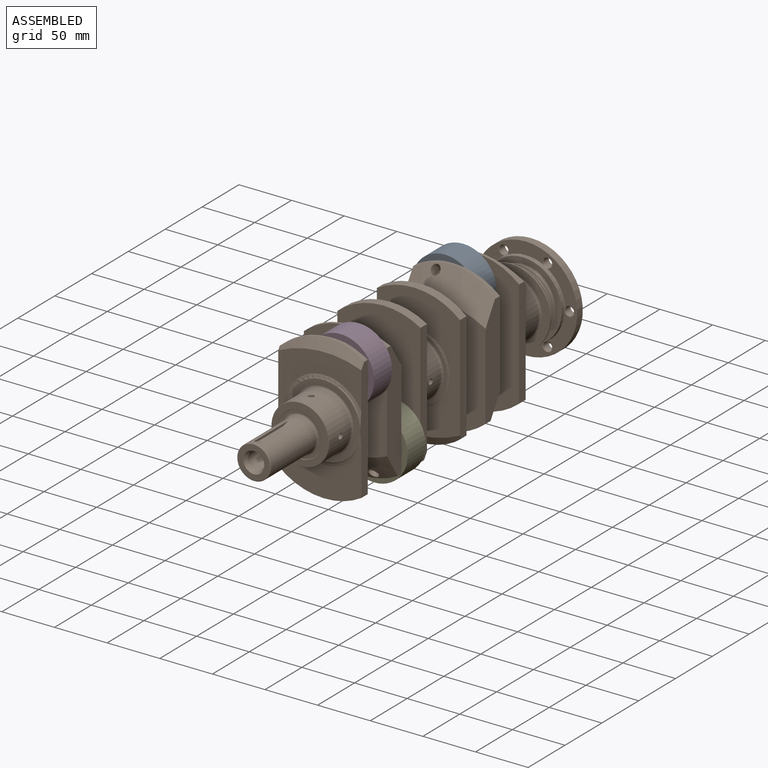
[diagram: assembled view]
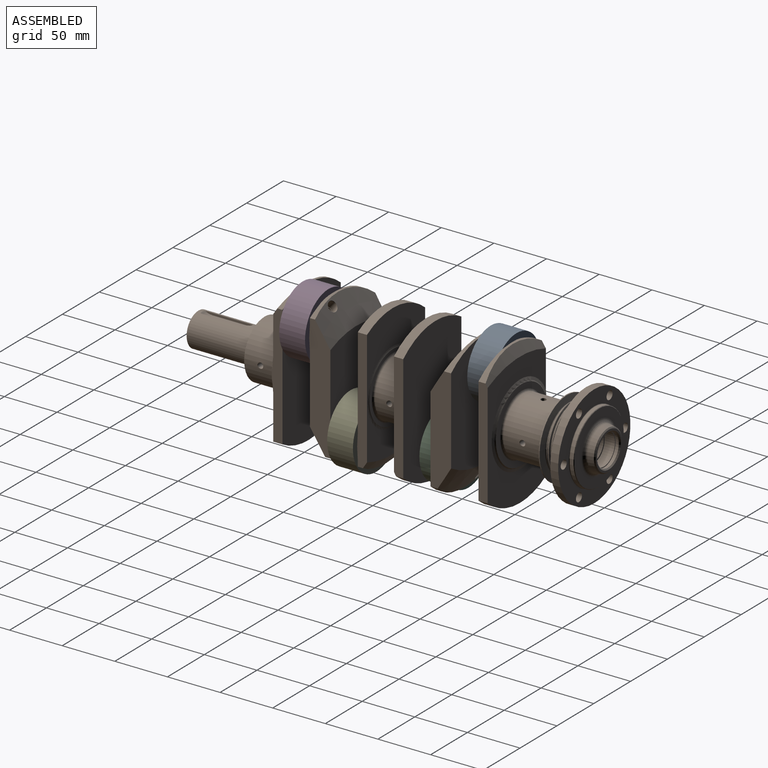
[diagram: assembled view, second angle]
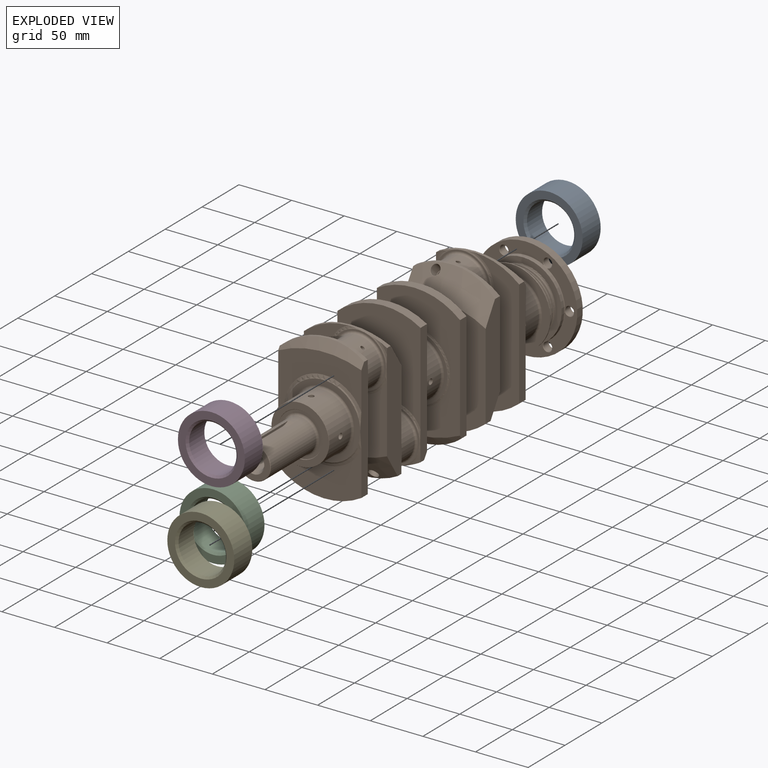
[diagram: exploded view]
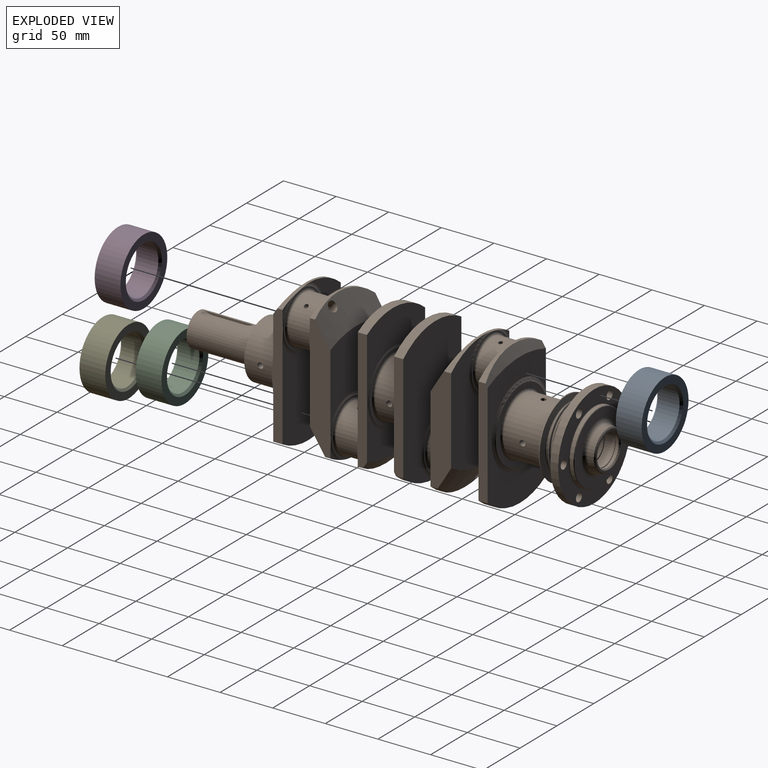
[diagram: exploded view, second angle]
ASSEMBLY  parts=5 mates=4
PART A: 6 faces, bbox 63.6x24.5x63.6 mm
  f0: cylinder r=22.5mm len=45mm, axis (0,1,0), area 2898.1mm2, adj f4,f5
  f1: cylinder r=31.8mm len=63.6mm, axis (0,1,0), area 4895.2mm2, adj f2,f3
  f2: plane 63.6x63.6mm, normal (0,-1,0), area 1291.2mm2, adj f1,f5
  f3: plane 63.6x63.6mm, normal (0,1,0), area 1291.2mm2, adj f1,f4
  f4: cone r=24.5mm half-angle=45deg, axis (0,1,0), area 417.6mm2, adj f0,f3
  f5: cone r=22.5mm half-angle=45deg, axis (0,-1,0), area 417.6mm2, adj f0,f2
PART B: 289 faces, bbox 133.7x410.5x174 mm
  f0: cylinder r=32.5mm len=65mm, axis (0,-1,0), area 258.4mm2, adj f1,f286,f287,f288
  f1: bspline ~75.06x65mm, area 482.8mm2, adj f0,f2,f285,f286,f288
  f2: torus R=31.5mm, axis (0,-1,0), area 777.3mm2, adj f1,f3,f4,f7,f283,f284,f285,f286
  f3: cylinder r=30.75mm len=61.5mm, axis (0,1,0), area 283.4mm2, adj f2,f4,f287,f288
  f4: bspline ~75.06x65mm, area 482.8mm2, adj f2,f3,f5,f283,f288
  f5: cylinder r=32.5mm len=65mm, axis (0,-1,0), area 258.4mm2, adj f4,f6,f283,f284,f288
  f6: cone r=30.65mm half-angle=58.2deg, axis (0,1,0), area 20.9mm2, adj f5,f284,f288
  f7: plane 74x74mm, normal (0,-1,0), area 1183.6mm2, adj f2,f8
  f8: cylinder r=37mm len=74mm, axis (0,-1,0), area 813.7mm2, adj f7,f9
  f9: torus R=37.5mm, axis (0,-1,0), area 177.9mm2, adj f8,f10,f277,f278,f279,f280,f281,f282
  f10: bspline ~3.76x2.42mm, area 2.3mm2, adj f9,f11,f276
  f11: cylinder r=4.1mm len=8.2mm, axis (0,1,0), area 180.7mm2, adj f10,f12,f276
  f12: plane 98x98mm, normal (0,1,0), area 3486.8mm2, adj f11,f13,f14,f266,f268,f270,f272,f274
  f13: cylinder r=49mm len=98mm, axis (0,-1,0), area 2309.1mm2, adj f12,f282
  f14: torus R=34.5mm, axis (0,1,0), area 168.7mm2, adj f12,f15
  f15: cylinder r=34mm len=68mm, axis (0,-1,0), area 747.7mm2, adj f14,f16
  f16: cone r=34mm half-angle=45deg, axis (0,-1,0), area 149.9mm2, adj f15,f17
  f17: plane 67x67mm, normal (0,1,0), area 1711.3mm2, adj f16,f18
  f18: torus R=24.03mm, axis (0,-1,0), area 760.2mm2, adj f17,f19
  f19: cone r=19mm half-angle=10deg, axis (0,-1,0), area 652.6mm2, adj f18,f20
  f20: cone r=19.17mm half-angle=50deg, axis (0,-1,0), area 178.9mm2, adj f19,f21
  f21: plane 36x36mm, normal (0,1,0), area 194.2mm2, adj f20,f22
  f22: cone r=16.19mm half-angle=45deg, axis (0,1,0), area 165.2mm2, adj f21,f23
  f23: cylinder r=15mm len=30mm, axis (0,-1,0), area 217.5mm2, adj f22,f24
  f24: plane 31.5x31.5mm, normal (0,-1,0), area 72.5mm2, adj f23,f25
  f25: cylinder r=15.75mm len=31.5mm, axis (0,-1,0), area 128.6mm2, adj f24,f26
  f26: plane 31.5x31.5mm, normal (0,1,0), area 72.5mm2, adj f25,f27
  f27: cylinder r=15mm len=30mm, axis (0,-1,0), area 848.2mm2, adj f26,f28
  f28: plane 30.5x30.5mm, normal (0,-1,0), area 23.8mm2, adj f27,f29
  f29: cylinder r=15.25mm len=30.5mm, axis (0,-1,0), area 95.8mm2, adj f28,f30
  f30: plane 30.5x30.5mm, normal (0,1,0), area 114.9mm2, adj f29,f31
  f31: cylinder r=14mm len=28mm, axis (0,-1,0), area 545.4mm2, adj f30,f32
  f32: plane 28x28mm, normal (0,1,0), area 361.3mm2, adj f31,f33
  f33: cone r=9mm half-angle=60deg, axis (0,1,0), area 116.1mm2, adj f32,f34
  f34: cylinder r=7mm len=14mm, axis (0,-1,0), area 301.1mm2, adj f33,f35
  f35: torus R=6mm, axis (0,-1,0), area 65.5mm2, adj f34,f36
  f36: plane 12x12mm, normal (0,1,0), area 34.6mm2, adj f35,f37
  f37: cylinder r=5mm len=48mm, axis (0,-1,0), area 1303.9mm2, adj f36,f38,f257,f258,f259,f262,f263,f264
  f38: cylinder r=2.5mm len=22.84mm, axis (0,0,1), area 358.7mm2, adj f37,f39
  f39: bspline ~5.43x5.4mm, area 4.7mm2, adj f38,f40
  f40: cylinder r=27.5mm len=55mm, axis (0,-1,0), area 6473.6mm2, adj f39,f41,f42,f43,f50,f51
  f41: bspline ~5.43x5.4mm, area 4.7mm2, adj f40,f258
  f42: bspline ~5.43x5.4mm, area 4.7mm2, adj f40,f257
  f43: torus R=29.5mm, axis (0,-1,0), area 557.2mm2, adj f40,f44
  f44: plane 74x74mm, normal (0,-1,0), area 1566.9mm2, adj f43,f45
  f45: cylinder r=37mm len=74mm, axis (0,-1,0), area 232.5mm2, adj f44,f46
  f46: cone r=37mm half-angle=81.9deg, axis (0,-1,0), area 1364.4mm2, adj f45,f47
  f47: torus R=30.75mm, axis (0,-1,0), area 203.6mm2, adj f46,f48
  f48: cylinder r=30mm len=60mm, axis (0,-1,0), area 18.8mm2, adj f47,f49
  f49: torus R=30.75mm, axis (0,-1,0), area 205mm2, adj f48,f288
  f50: bspline ~5.44x5.4mm, area 4.7mm2, adj f40,f265
  f51: torus R=29.5mm, axis (0,1,0), area 557.2mm2, adj f40,f52
  f52: plane 70x70mm, normal (0,1,0), area 1114.5mm2, adj f51,f53
  f53: torus R=38.57mm, axis (0,1,0), area 852.4mm2, adj f52,f54,f256
  f54: plane 125.72x79mm, normal (0,1,0), area 4779mm2, adj f53,f55,f254,f255,f256
  f55: cylinder r=67.5mm len=79mm, axis (0,-1,0), area 741.3mm2, adj f54,f56,f254,f256
  f56: plane 154.99x99mm, normal (0,-1,0), area 7489.8mm2, adj f55,f57,f253,f254,f256
  f57: torus R=28.63mm, axis (0,1,0), area 3059.6mm2, adj f56,f58,f252,f253,f256
  f58: plane 52x52mm, normal (0,-1,0), area 238mm2, adj f57,f59
  f59: torus R=24.5mm, axis (0,1,0), area 458.5mm2, adj f58,f60
  f60: cylinder r=22.5mm len=45mm, axis (0,-1,0), area 2852.4mm2, adj f59,f61,f68,f70,f71
  f61: bspline ~4.91x4.17mm, area 6.2mm2, adj f60,f62
  f62: cylinder r=1.75mm len=20mm, axis (0.68,0,0.73), area 243.6mm2, adj f61,f63,f65,f66,f67
  f63: cone r=1.75mm half-angle=60deg, axis (0.68,0,0.73), area 1.8mm2, adj f62,f64,f65
  f64: cone r=0mm half-angle=59deg, axis (0.21,0,-0.98), area 0mm2, adj f63,f65
  f65: cylinder r=1.75mm len=28.83mm, axis (0.21,0,-0.98), area 301.6mm2, adj f62,f63,f64,f70
  f66: cylinder r=1.75mm len=0.11mm, axis (0.21,0,-0.98), area 0mm2, adj f62
  f67: cylinder r=1.75mm len=0.11mm, axis (0.21,0,-0.98), area 0mm2, adj f62
  f68: bspline ~4.15x4.12mm, area 5.7mm2, adj f60,f69
  f69: cylinder r=1.75mm len=18.13mm, axis (0.21,0,-0.98), area 177.8mm2, adj f68,f259
  f70: bspline ~4.54x4.17mm, area 6mm2, adj f60,f65
  f71: torus R=24.5mm, axis (0,1,0), area 458.5mm2, adj f60,f72
  f72: plane 52x52mm, normal (0,1,0), area 238mm2, adj f71,f73
  f73: torus R=28.63mm, axis (0,1,0), area 1623.7mm2, adj f72,f74,f249,f250,f251
  f74: plane 135.44x40.63mm, normal (-1,0,0), area 1938.3mm2, adj f73,f75,f80,f81,f82,f83,f84,f249
  f75: cone r=109mm half-angle=55deg, axis (0,1,0), area 2228.9mm2, adj f74,f76,f77,f80,f250
  f76: plane 103.41x20.53mm, normal (1,0,0), area 1734.4mm2, adj f75,f80,f83,f84,f250,f251
  f77: bspline ~9.55x8mm, area 8.4mm2, adj f75,f78
  f78: cylinder r=4.57mm len=13.41mm, axis (-0.15,-0.67,0.72), area 259.6mm2, adj f77,f79
  f79: plane 9.02x6.74mm, normal (-0.15,-0.67,0.72), area 13.6mm2, adj f78,f259
  f80: plane 110.36x79mm, normal (0,-1,0), area 5617.6mm2, adj f74,f75,f76,f81,f83
  f81: torus R=28.63mm, axis (0,1,0), area -278.2mm2, adj f74,f80,f82,f83
  f82: plane 29.31x26.4mm, normal (0,-1,0), area 15.1mm2, adj f74,f81,f83
  f83: cylinder r=67.5mm len=79mm, axis (0,-1,0), area 306.7mm2, adj f74,f76,f80,f81,f82,f84
  f84: cone r=109mm half-angle=55deg, axis (0,-1,0), area 2229.1mm2, adj f74,f76,f83,f85,f251
  f85: bspline ~9.55x8.01mm, area 8.4mm2, adj f84,f86
  f86: cylinder r=4.57mm len=13.43mm, axis (-0.15,0.67,-0.72), area 252.1mm2, adj f85,f87
  f87: plane 9.02x6.74mm, normal (-0.15,0.67,-0.72), area 13.6mm2, adj f86,f88
  f88: cylinder r=4.07mm len=59.29mm, axis (-0.15,0.67,-0.72), area 1812.7mm2, adj f87,f89,f155,f156,f157,f158,f159,f160
  f89: cylinder r=1.75mm len=18.13mm, axis (0.21,0,0.98), area 177.8mm2, adj f88,f90
  f90: bspline ~4.15x4.12mm, area 5.7mm2, adj f89,f91
  f91: cylinder r=22.5mm len=45mm, axis (0,-1,0), area 2852.5mm2, adj f90,f92,f100,f101,f104
  f92: bspline ~4.17x3.7mm, area 6mm2, adj f91,f93
  f93: cylinder r=1.75mm len=30.08mm, axis (0.21,0,0.98), area 308.8mm2, adj f92,f94,f95,f96,f97,f98,f99
  f94: cylinder r=1.75mm len=22.76mm, axis (-0.92,0,-0.39), area 233mm2, adj f93,f95,f100
  f95: cone r=0mm half-angle=59deg, axis (0.21,0,0.98), area 6.3mm2, adj f93,f94
  f96: cone r=1.75mm half-angle=60deg, axis (-0.92,0,-0.39), area 0mm2, adj f93,f97
  f97: cylinder r=1.75mm len=2.22mm, axis (-0.92,0,-0.39), area 1mm2, adj f93,f96
  f98: cone r=1.75mm half-angle=60deg, axis (-0.92,0,-0.39), area 0mm2, adj f93,f99
  f99: cylinder r=1.75mm len=2.22mm, axis (-0.92,0,-0.39), area 1mm2, adj f93,f98
  f100: bspline ~4.17x4.14mm, area 6.2mm2, adj f91,f94
  f101: torus R=24.5mm, axis (0,1,0), area 458.5mm2, adj f91,f102
  f102: plane 52x52mm, normal (0,-1,0), area 238mm2, adj f101,f103
  f103: torus R=28.63mm, axis (0,1,0), area 0mm2, adj f102
  f104: torus R=24.5mm, axis (0,1,0), area 458.5mm2, adj f91,f105
  f105: plane 52x52mm, normal (0,1,0), area 238mm2, adj f104,f106
  f106: torus R=28.63mm, axis (0,1,0), area 733.5mm2, adj f105,f107,f152,f153,f154
  f107: plane 135.43x29.31mm, normal (-1,0,0), area 1005.4mm2, adj f106,f108,f110,f151,f152,f153,f154
  f108: cylinder r=67.5mm len=79mm, axis (0,-1,0), area 741.3mm2, adj f107,f109,f110,f152
  f109: plane 102.4x8.77mm, normal (1,0,0), area 892.6mm2, adj f108,f110,f151,f152,f153
  f110: plane 125.72x79mm, normal (0,-1,0), area 5596.5mm2, adj f107,f108,f109,f111,f151
  f111: torus R=34.68mm, axis (0,1,0), area 475.7mm2, adj f110,f112
  f112: plane 65x65mm, normal (0,-1,0), area 584.3mm2, adj f111,f113
  f113: torus R=29.5mm, axis (0,1,0), area 557.2mm2, adj f112,f114
  f114: cylinder r=27.5mm len=55mm, axis (0,1,0), area 4576.8mm2, adj f113,f115,f116,f121,f122,f150
  f115: bspline ~5.43x5.4mm, area 4.7mm2, adj f114,f155
  f116: bspline ~5.44x5.4mm, area 4.7mm2, adj f114,f117
  f117: cylinder r=2.5mm len=22.66mm, axis (0,0,1), area 332.4mm2, adj f116,f118,f119,f120,f156
  f118: cone r=4.07mm half-angle=60deg, axis (-0.15,0.67,-0.72), area 60mm2, adj f117,f119
  f119: cylinder r=4.07mm len=8.86mm, axis (-0.15,0.67,-0.72), area 58.2mm2, adj f117,f118,f155,f156,f157,f161
  f120: cone r=4.07mm half-angle=60deg, axis (0.15,-0.67,-0.72), area 60mm2, adj f117,f156
  f121: bspline ~5.43x5.4mm, area 4.7mm2, adj f114,f157
  f122: torus R=29.5mm, axis (0,-1,0), area 557.2mm2, adj f114,f123
  f123: plane 65x65mm, normal (0,1,0), area 584.3mm2, adj f122,f124
  f124: torus R=34.68mm, axis (0,-1,0), area 475.7mm2, adj f123,f125
  f125: plane 125.72x79mm, normal (0,1,0), area 5596.5mm2, adj f124,f126,f147,f148,f149
  f126: plane 135.43x29.31mm, normal (1,0,0), area 1005.4mm2, adj f125,f127,f128,f145,f146,f147,f149
  f127: plane 29.31x26.4mm, normal (0,-1,0), area 15.1mm2, adj f126,f128,f146
  f128: torus R=28.63mm, axis (0,-1,0), area 733.5mm2, adj f126,f127,f129,f145,f146
  f129: plane 52x52mm, normal (0,-1,0), area 238mm2, adj f128,f130
  f130: torus R=24.5mm, axis (0,-1,0), area 458.5mm2, adj f129,f131
  f131: cylinder r=22.5mm len=45mm, axis (0,1,0), area 2852.9mm2, adj f130,f132,f139,f141,f142
  f132: bspline ~4.54x4.17mm, area 6mm2, adj f131,f133
  f133: cylinder r=1.75mm len=28.83mm, axis (-0.21,0,0.98), area 301.6mm2, adj f132,f134,f137,f138
  f134: cylinder r=1.75mm len=20mm, axis (-0.68,0,-0.73), area 243.6mm2, adj f133,f135,f136,f137,f141
  f135: cylinder r=1.75mm len=0.11mm, axis (-0.21,0,0.98), area 0mm2, adj f134
  f136: cylinder r=1.75mm len=0.11mm, axis (-0.21,0,0.98), area 0mm2, adj f134
  f137: cone r=1.75mm half-angle=60deg, axis (-0.68,0,-0.73), area 1.8mm2, adj f133,f134,f138
  f138: cone r=0mm half-angle=59deg, axis (-0.21,0,0.98), area 0mm2, adj f133,f137
  f139: bspline ~4.15x4.12mm, area 5.7mm2, adj f131,f140
  f140: cylinder r=1.75mm len=18.13mm, axis (-0.21,0,0.98), area 177.8mm2, adj f139,f161
  f141: bspline ~4.91x4.17mm, area 6.2mm2, adj f131,f134
  f142: torus R=24.5mm, axis (0,-1,0), area 458.5mm2, adj f131,f143
  f143: plane 52x52mm, normal (0,1,0), area 238mm2, adj f142,f144
  f144: torus R=28.63mm, axis (0,-1,0), area 0mm2, adj f143
  f145: plane 134.99x79mm, normal (0,-1,0), area 7489.8mm2, adj f126,f128,f146,f147,f148
  f146: cylinder r=67.5mm len=79mm, axis (0,1,0), area 306.7mm2, adj f126,f127,f128,f145,f148,f149
  f147: cylinder r=67.5mm len=79mm, axis (0,1,0), area 741.3mm2, adj f125,f126,f145,f148
  f148: plane 102.4x8.77mm, normal (-1,0,0), area 892.6mm2, adj f125,f145,f146,f147,f149
  f149: cone r=109mm half-angle=55deg, axis (0,-1,0), area 752.5mm2, adj f125,f126,f146,f148
  f150: bspline ~5.43x5.4mm, area 4.7mm2, adj f114,f160
  f151: cone r=109mm half-angle=55deg, axis (0,1,0), area 752.5mm2, adj f107,f109,f110,f153
  f152: plane 134.99x79mm, normal (0,1,0), area 7489.8mm2, adj f106,f107,f108,f109,f153
  f153: cylinder r=67.5mm len=79mm, axis (0,-1,0), area 306.7mm2, adj f106,f107,f109,f151,f152,f154
  f154: plane 29.31x26.4mm, normal (0,1,0), area 15.1mm2, adj f106,f107,f153
  f155: cylinder r=2.5mm len=23.76mm, axis (1,0,0), area 364.6mm2, adj f88,f115,f119,f156,f161
  f156: cylinder r=4.07mm len=8.86mm, axis (0.15,-0.67,-0.72), area 58.2mm2, adj f88,f117,f119,f120,f155,f157
  f157: cylinder r=2.5mm len=23.76mm, axis (1,0,0), area 364.6mm2, adj f88,f119,f121,f156,f161
  f158: cone r=0mm half-angle=59deg, axis (0.21,0,0.98), area 8.8mm2, adj f88,f159
  f159: cylinder r=1.75mm len=3.9mm, axis (0.21,0,0.98), area 10.2mm2, adj f88,f158
  f160: cylinder r=2.5mm len=22.53mm, axis (0,0,1), area 318.7mm2, adj f88,f150,f161
  f161: cylinder r=4.07mm len=59.29mm, axis (0.15,-0.67,-0.72), area 1813.7mm2, adj f88,f119,f140,f155,f157,f160,f162,f247
  f162: plane 9.02x6.74mm, normal (0.15,-0.67,-0.72), area 13.6mm2, adj f161,f163
  f163: cylinder r=4.57mm len=13.41mm, axis (0.15,-0.67,-0.72), area 257.2mm2, adj f162,f164
  f164: bspline ~9.54x8mm, area 8.4mm2, adj f163,f165
  f165: cone r=109mm half-angle=55deg, axis (0,1,0), area 2228.7mm2, adj f164,f166,f244,f245,f246
  f166: cylinder r=67.5mm len=79mm, axis (0,1,0), area 306.7mm2, adj f165,f167,f168,f169,f244,f246
  f167: plane 29.31x26.4mm, normal (0,1,0), area 15.1mm2, adj f166,f168,f246
  f168: torus R=28.63mm, axis (0,-1,0), area -278.2mm2, adj f166,f167,f169,f246
  f169: plane 110.36x79mm, normal (0,1,0), area 5617.6mm2, adj f166,f168,f170,f244,f246
  f170: cone r=109mm half-angle=55deg, axis (0,-1,0), area 2228.7mm2, adj f169,f171,f243,f244,f246
  f171: cylinder r=67.5mm len=79mm, axis (0,1,0), area 306.7mm2, adj f170,f172,f173,f244,f245,f246
  f172: plane 9.31x6.4mm, normal (0,-1,0), area 15.1mm2, adj f171,f173,f246
  f173: torus R=28.63mm, axis (0,-1,0), area 1623.7mm2, adj f171,f172,f174,f245,f246
  f174: plane 52x52mm, normal (0,-1,0), area 238mm2, adj f173,f175
  f175: torus R=24.5mm, axis (0,-1,0), area 458.5mm2, adj f174,f176
  f176: cylinder r=22.5mm len=45mm, axis (0,1,0), area 2853.3mm2, adj f175,f177,f185,f241,f242
  f177: bspline ~4.17x4.14mm, area 6.2mm2, adj f176,f178
  f178: cylinder r=1.75mm len=22.76mm, axis (0.92,0,0.39), area 233mm2, adj f177,f179,f180
  f179: cone r=0mm half-angle=59deg, axis (-0.21,0,-0.98), area 6.3mm2, adj f178,f180
  f180: cylinder r=1.75mm len=30.08mm, axis (-0.21,0,-0.98), area 308.8mm2, adj f178,f179,f181,f182,f183,f184,f241
  f181: cone r=1.75mm half-angle=60deg, axis (0.92,0,0.39), area 0mm2, adj f180,f182
  f182: cylinder r=1.75mm len=2.22mm, axis (0.92,0,0.39), area 1mm2, adj f180,f181
  f183: cone r=1.75mm half-angle=60deg, axis (0.92,0,0.39), area 0mm2, adj f180,f184
  f184: cylinder r=1.75mm len=2.22mm, axis (0.92,0,0.39), area 1mm2, adj f180,f183
  f185: bspline ~4.15x4.12mm, area 5.7mm2, adj f176,f186
  f186: cylinder r=1.75mm len=18.13mm, axis (-0.21,0,-0.98), area 177.8mm2, adj f185,f187
  f187: cylinder r=4.07mm len=58.03mm, axis (0.15,0.67,0.72), area 1758.6mm2, adj f186,f188,f190,f191,f192,f239,f240
  f188: plane 9.02x6.74mm, normal (0.15,0.67,0.72), area 13.6mm2, adj f187,f189
  f189: cylinder r=4.57mm len=13.41mm, axis (0.15,0.67,0.72), area 253.5mm2, adj f188,f243
  f190: cone r=0mm half-angle=59deg, axis (-0.21,0,-0.98), area 8.8mm2, adj f187,f191
  f191: cylinder r=1.75mm len=3.9mm, axis (-0.21,0,-0.98), area 10.2mm2, adj f187,f190
  f192: cylinder r=2.5mm len=22.84mm, axis (0,0,1), area 351.6mm2, adj f187,f193,f240
  f193: bspline ~5.43x5.4mm, area 4.7mm2, adj f192,f194
  f194: cylinder r=27.5mm len=55mm, axis (0,-1,0), area 4970.4mm2, adj f193,f195,f197,f202,f225,f226
  f195: bspline ~5.43x5.4mm, area 4.7mm2, adj f194,f196
  f196: cylinder r=2.5mm len=22.84mm, axis (1,0,0), area 358.7mm2, adj f195,f240
  f197: bspline ~5.43x5.4mm, area 4.7mm2, adj f194,f198
  f198: cylinder r=2.5mm len=22.84mm, axis (1,0,0), area 353.1mm2, adj f197,f199,f240
  f199: cylinder r=4.07mm len=8.44mm, axis (0.15,0.67,0.72), area 24mm2, adj f198,f200,f201,f240
  f200: cylinder r=2.5mm len=21.37mm, axis (0,0,1), area 330.5mm2, adj f199,f201,f225
  f201: cone r=4.07mm half-angle=60deg, axis (0.15,0.67,0.72), area 21.6mm2, adj f199,f200,f240
  f202: cone r=27.3mm half-angle=45deg, axis (0,1,0), area 48.7mm2, adj f194,f203
  f203: plane 54.6x54.6mm, normal (0,-1,0), area 956mm2, adj f202,f204
  f204: torus R=20.5mm, axis (0,-1,0), area 102.7mm2, adj f203,f205
  f205: plane 41x41mm, normal (0,-1,0), area 302.4mm2, adj f204,f206
  f206: torus R=18mm, axis (0,-1,0), area 330.2mm2, adj f205,f207
  f207: cylinder r=16mm len=61mm, axis (0,-1,0), area 5853.4mm2, adj f206,f208,f212,f213,f214,f215,f216,f217
  f208: torus R=13.7mm, axis (1,0,0), area 3.6mm2, adj f207,f209,f212,f218
  f209: cylinder r=0.3mm len=31mm, axis (0,-1,0), area 14.6mm2, adj f208,f210,f212,f213
  f210: plane 31x5.4mm, normal (0,0,1), area 167.4mm2, adj f209,f211,f214,f218
  f211: cylinder r=0.3mm len=31mm, axis (0,1,0), area 14.6mm2, adj f210,f215,f216,f217
  f212: plane 44.98x1.92mm, normal (1,0,0), area 77.5mm2, adj f207,f208,f209,f213
  f213: torus R=13.7mm, axis (1,0,0), area 3.6mm2, adj f207,f209,f212,f214
  f214: cylinder r=14mm len=7.64mm, axis (-1,0,0), area 43.7mm2, adj f207,f210,f213,f215
  f215: torus R=13.7mm, axis (1,0,0), area 3.6mm2, adj f207,f211,f214,f216
  f216: plane 44.98x1.92mm, normal (-1,0,0), area 77.5mm2, adj f207,f211,f215,f217
  f217: torus R=13.7mm, axis (1,0,0), area 3.6mm2, adj f207,f211,f216,f218
  f218: cylinder r=14mm len=7.64mm, axis (-1,0,0), area 43.7mm2, adj f207,f208,f210,f217
  f219: cone r=15.5mm half-angle=45deg, axis (0,1,0), area 70mm2, adj f207,f220
  f220: plane 31x31mm, normal (0,-1,0), area 439.3mm2, adj f219,f221
  f221: cone r=8mm half-angle=30deg, axis (0,-1,0), area 228.8mm2, adj f220,f222
  f222: cylinder r=8mm len=18mm, axis (0,-1,0), area 904.8mm2, adj f221,f223
  f223: cone r=5.98mm half-angle=30deg, axis (0,-1,0), area 177.5mm2, adj f222,f224
  f224: plane 11.96x11.96mm, normal (0,-1,0), area 33.8mm2, adj f223,f240
  f225: bspline ~5.44x5.4mm, area 4.7mm2, adj f194,f200
  f226: torus R=29.5mm, axis (0,-1,0), area 557.2mm2, adj f194,f227
  f227: plane 70x70mm, normal (0,-1,0), area 1114.5mm2, adj f226,f228
  f228: torus R=38.57mm, axis (0,-1,0), area 852.4mm2, adj f227,f229,f238
  f229: plane 125.72x79mm, normal (0,-1,0), area 4779mm2, adj f228,f230,f236,f237,f238
  f230: cylinder r=67.5mm len=79mm, axis (0,1,0), area 741.3mm2, adj f229,f231,f236,f238
  f231: plane 154.99x99mm, normal (0,1,0), area 7489.8mm2, adj f230,f232,f235,f236,f238
  f232: torus R=28.63mm, axis (0,-1,0), area 3059.6mm2, adj f231,f233,f234,f235,f238
  f233: plane 52x52mm, normal (0,1,0), area 238mm2, adj f232,f242
  f234: plane 9.31x6.4mm, normal (0,1,0), area 15.1mm2, adj f232,f235,f238
  f235: cylinder r=67.5mm len=79mm, axis (0,1,0), area 306.7mm2, adj f231,f232,f234,f236,f237,f238
  f236: plane 102.4x8.77mm, normal (-1,0,0), area 892.6mm2, adj f229,f230,f231,f235,f237
  f237: cone r=109mm half-angle=55deg, axis (0,1,0), area 752.5mm2, adj f229,f235,f236,f238
  f238: plane 135.42x30.8mm, normal (1,0,0), area 1029.9mm2, adj f228,f229,f230,f231,f232,f234,f235,f237
  f239: cone r=5mm half-angle=60deg, axis (0,-1,0), area 90.7mm2, adj f187,f240
  f240: cylinder r=5mm len=65mm, axis (0,-1,0), area 1857.4mm2, adj f187,f192,f196,f198,f199,f201,f224,f239
  f241: bspline ~4.17x3.7mm, area 6mm2, adj f176,f180
  f242: torus R=24.5mm, axis (0,-1,0), area 458.5mm2, adj f176,f233
  f243: bspline ~9.54x8mm, area 8.4mm2, adj f170,f189
  f244: plane 103.41x20.53mm, normal (-1,0,0), area 1734.4mm2, adj f165,f166,f169,f170,f171,f245
  f245: plane 130.36x99mm, normal (0,-1,0), area 5617.6mm2, adj f165,f171,f173,f244,f246
  f246: plane 135.44x40.63mm, normal (1,0,0), area 1938.3mm2, adj f165,f166,f167,f168,f169,f170,f171,f172
  f247: cone r=0mm half-angle=59deg, axis (-0.21,0,0.98), area 8.8mm2, adj f161,f248
  f248: cylinder r=1.75mm len=3.9mm, axis (-0.21,0,0.98), area 10.2mm2, adj f161,f247
  f249: plane 9.31x6.4mm, normal (0,1,0), area 15.1mm2, adj f73,f74,f250
  f250: cylinder r=67.5mm len=79mm, axis (0,-1,0), area 306.7mm2, adj f73,f74,f75,f76,f249,f251
  f251: plane 130.36x99mm, normal (0,1,0), area 5617.6mm2, adj f73,f74,f76,f84,f250
  f252: plane 9.31x6.4mm, normal (0,-1,0), area 15.1mm2, adj f57,f253,f256
  f253: cylinder r=67.5mm len=79mm, axis (0,-1,0), area 306.7mm2, adj f56,f57,f252,f254,f255,f256
  f254: plane 102.4x8.77mm, normal (1,0,0), area 892.6mm2, adj f54,f55,f56,f253,f255
  f255: cone r=109mm half-angle=55deg, axis (0,-1,0), area 752.5mm2, adj f54,f253,f254,f256
  f256: plane 135.42x30.8mm, normal (-1,0,0), area 1029.9mm2, adj f53,f54,f55,f56,f57,f252,f253,f255
  f257: cylinder r=2.5mm len=22.84mm, axis (1,0,0), area 358.7mm2, adj f37,f42
  f258: cylinder r=2.5mm len=22.97mm, axis (1,0,0), area 354.4mm2, adj f37,f41,f263,f264
  f259: cylinder r=4.07mm len=58.03mm, axis (-0.15,-0.67,0.72), area 1764.8mm2, adj f37,f69,f79,f260,f261,f262
  f260: cone r=0mm half-angle=59deg, axis (0.21,0,-0.98), area 8.8mm2, adj f259,f261
  f261: cylinder r=1.75mm len=3.9mm, axis (0.21,0,-0.98), area 10.2mm2, adj f259,f260
  f262: cone r=5mm half-angle=60deg, axis (0,1,0), area 89.8mm2, adj f37,f259
  f263: cylinder r=4.07mm len=8.44mm, axis (-0.15,-0.67,0.72), area 33.4mm2, adj f37,f258,f264
  f264: cone r=4.07mm half-angle=60deg, axis (-0.15,-0.67,0.72), area 31.3mm2, adj f37,f258,f263,f265
  f265: cylinder r=2.5mm len=22.79mm, axis (0,0,1), area 353.5mm2, adj f37,f50,f264
  f266: cylinder r=4.1mm len=8.2mm, axis (0,1,0), area 180.3mm2, adj f12,f267,f277
  f267: cone r=4.6mm half-angle=45deg, axis (0,-1,0), area 16.3mm2, adj f266,f277,f282
  f268: cylinder r=4.1mm len=8.2mm, axis (0,1,0), area 180.3mm2, adj f12,f269,f278
  f269: cone r=4.6mm half-angle=45deg, axis (0,-1,0), area 16.3mm2, adj f268,f278,f282
  f270: cylinder r=4.1mm len=8.2mm, axis (0,1,0), area 180.3mm2, adj f12,f271,f279
  f271: cone r=4.6mm half-angle=45deg, axis (0,-1,0), area 16.3mm2, adj f270,f279,f282
  f272: cylinder r=4.1mm len=8.2mm, axis (0,1,0), area 180.3mm2, adj f12,f273,f280
  f273: cone r=4.6mm half-angle=45deg, axis (0,-1,0), area 16.3mm2, adj f272,f280,f282
  f274: cylinder r=4.1mm len=8.2mm, axis (0,1,0), area 180.7mm2, adj f12,f275,f281
  f275: cone r=4.6mm half-angle=45deg, axis (0,-1,0), area 16.3mm2, adj f274,f281,f282
  f276: cone r=4.6mm half-angle=45deg, axis (0,-1,0), area 16.3mm2, adj f10,f11,f282
  f277: bspline ~4.32x0.68mm, area 2.3mm2, adj f9,f266,f267
  f278: bspline ~3.76x2.42mm, area 2.3mm2, adj f9,f268,f269
  f279: bspline ~3.76x2.42mm, area 2.3mm2, adj f9,f270,f271
  f280: bspline ~4.32x0.68mm, area 2.3mm2, adj f9,f272,f273
  f281: bspline ~3.76x2.42mm, area 2.3mm2, adj f9,f274,f275
  f282: plane 98x98mm, normal (0,-1,0), area 2736.7mm2, adj f9,f13,f267,f269,f271,f273,f275,f276
  f283: cone r=32.5mm half-angle=55.6deg, axis (0,-1,0), area 95.2mm2, adj f2,f4,f5,f284
  f284: bspline ~75.06x65mm, area 482.5mm2, adj f2,f5,f6,f283,f285
  f285: cylinder r=30.75mm len=61.5mm, axis (0,1,0), area 283.4mm2, adj f1,f2,f284,f288
  f286: cone r=32.5mm half-angle=55.6deg, axis (0,-1,0), area 95.2mm2, adj f0,f1,f2,f287
  f287: bspline ~75.06x65mm, area 482.5mm2, adj f0,f2,f3,f286,f288
  f288: cone r=30.65mm half-angle=58.2deg, axis (0,1,0), area 214.7mm2, adj f0,f1,f3,f4,f5,f6,f49,f285
PART C: same geometry as A
PART D: same geometry as A
PART E: same geometry as A
PLACE A t=(-8.67,83.25,40.58)mm
PLACE B at identity
PLACE C t=(-8.67,37.75,-40.58)mm
PLACE D t=(8.67,-83.25,40.58)mm
PLACE E t=(8.67,-37.75,-40.58)mm
MATE revolute E.f0 <-> B.f128  axis (0,1,0) through (8.67,-37.75,-40.58)mm
MATE revolute D.f0 <-> B.f173  axis (0,1,0) through (8.67,-83.25,40.58)mm
MATE revolute C.f0 <-> B.f81  axis (0,1,0) through (-8.67,37.75,-40.58)mm
MATE revolute A.f0 <-> B.f57  axis (0,1,0) through (-8.67,83.25,40.58)mm
